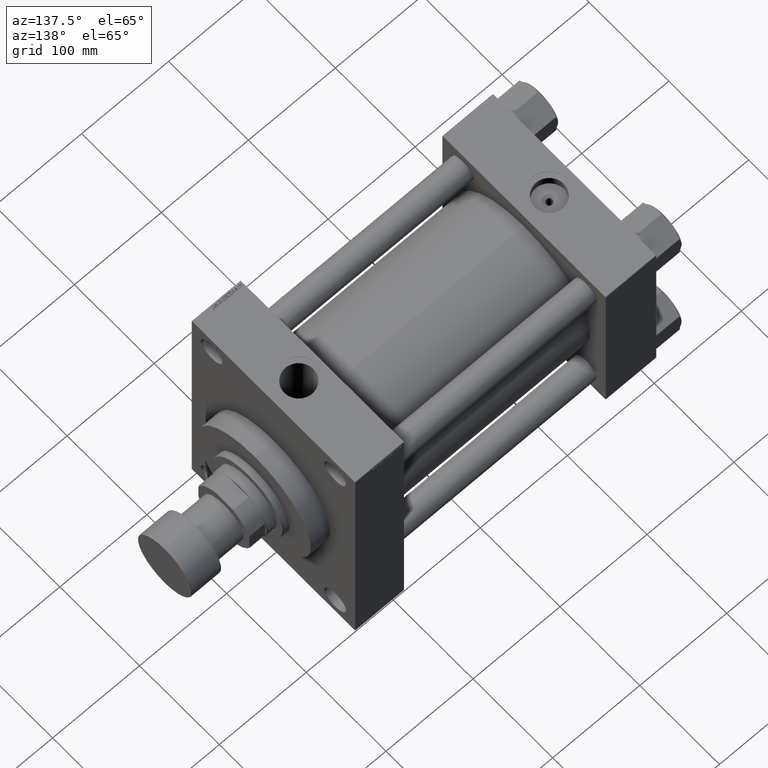
[diagram: clean part render]
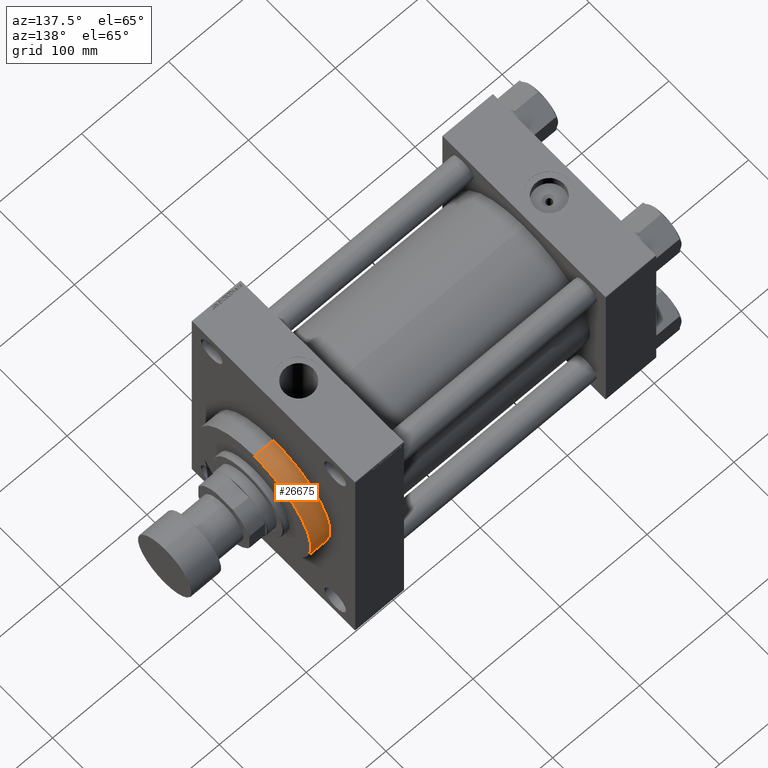
[diagram: same view with one face highlighted and labeled with its STEP entity id]
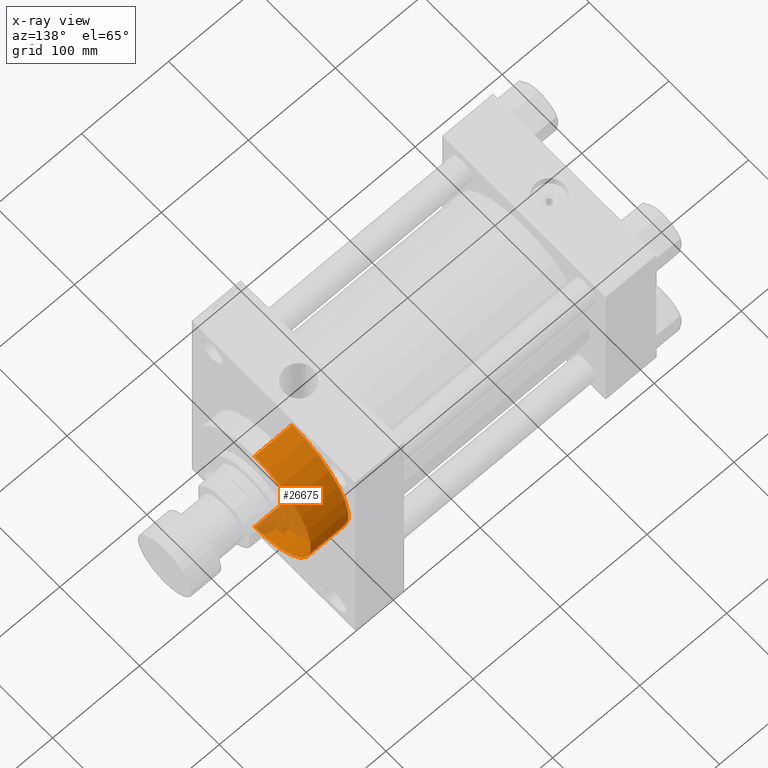
[diagram: x-ray of the same camera — body ghosted, the highlighted face saturated]
A machine part, auxiliary view. The second image highlights one B-rep face of the part: STEP entity #26675.
The next image is the same camera in x-ray: the body ghosted, the highlighted face saturated — about 17% of this face is hidden behind the body in this view.
In plain terms, the highlighted cylindrical surface (partial cylindrical patch) has radius 71 mm, axis along (-1, -0, 0).
Its self-contained STEP definition (entity closure, byte-faithful):
#1327 = DIRECTION ( 'NONE',  ( -0.000000000000000000, -0.000000000000000000, -1.000000000000000000 ) ) ;
#1531 = ORIENTED_EDGE ( 'NONE', *, *, #44902, .T. ) ;
#5234 = FACE_OUTER_BOUND ( 'NONE', #18524, .T. ) ;
#8718 = LINE ( 'NONE', #20386, #31416 ) ;
#9134 = CIRCLE ( 'NONE', #42563, 71.00000000000001421 ) ;
#9764 = DIRECTION ( 'NONE',  ( 0.000000000000000000, 0.000000000000000000, 1.000000000000000000 ) ) ;
#9818 = CARTESIAN_POINT ( 'NONE',  ( 0.000000000000000000, 0.000000000000000000, 0.000000000000000000 ) ) ;
#10010 = CARTESIAN_POINT ( 'NONE',  ( 71.00000000000001421, 8.694992273946208141E-15, 43.25999999999999801 ) ) ;
#12876 = CARTESIAN_POINT ( 'NONE',  ( -71.00000000000001421, 0.000000000000000000, 43.25999999999999801 ) ) ;
#13586 = ORIENTED_EDGE ( 'NONE', *, *, #17338, .F. ) ;
#14968 = CARTESIAN_POINT ( 'NONE',  ( -71.00000000000001421, 0.000000000000000000, 43.25999999999999801 ) ) ;
#15762 = AXIS2_PLACEMENT_3D ( 'NONE', #9818, #32673, #24427 ) ;
#17338 = EDGE_CURVE ( 'NONE', #36527, #36771, #9134, .T. ) ;
#18514 = ORIENTED_EDGE ( 'NONE', *, *, #39826, .T. ) ;
#18524 = EDGE_LOOP ( 'NONE', ( #13586, #1531, #18514, #41003 ) ) ;
#20062 = DIRECTION ( 'NONE',  ( -1.000000000000000000, 0.000000000000000000, 0.000000000000000000 ) ) ;
#20386 = CARTESIAN_POINT ( 'NONE',  ( 71.00000000000001421, 8.694992273946208141E-15, 43.25999999999999801 ) ) ;
#23468 = CARTESIAN_POINT ( 'NONE',  ( 0.000000000000000000, 0.000000000000000000, 43.25999999999999801 ) ) ;
#24040 = DIRECTION ( 'NONE',  ( -0.000000000000000000, -0.000000000000000000, -1.000000000000000000 ) ) ;
#24427 = DIRECTION ( 'NONE',  ( 1.000000000000000000, 0.000000000000000000, 0.000000000000000000 ) ) ;
#24614 = DIRECTION ( 'NONE',  ( 1.000000000000000000, 0.000000000000000000, 0.000000000000000000 ) ) ;
#25077 = CIRCLE ( 'NONE', #15762, 71.00000000000001421 ) ;
#26675 = ADVANCED_FACE ( 'NONE', ( #5234 ), #34671, .T. ) ;
#27947 = EDGE_CURVE ( 'NONE', #36771, #34812, #37876, .T. ) ;
#28816 = CARTESIAN_POINT ( 'NONE',  ( -71.00000000000001421, 0.000000000000000000, 0.000000000000000000 ) ) ;
#31416 = VECTOR ( 'NONE', #24040, 1000.000000000000000 ) ;
#32673 = DIRECTION ( 'NONE',  ( 0.000000000000000000, 0.000000000000000000, 1.000000000000000000 ) ) ;
#34671 = CYLINDRICAL_SURFACE ( 'NONE', #42036, 71.00000000000001421 ) ;
#34812 = VERTEX_POINT ( 'NONE', #28816 ) ;
#36455 = CARTESIAN_POINT ( 'NONE',  ( 71.00000000000001421, 8.694992273946208141E-15, 0.000000000000000000 ) ) ;
#36527 = VERTEX_POINT ( 'NONE', #10010 ) ;
#36771 = VERTEX_POINT ( 'NONE', #12876 ) ;
#37876 = LINE ( 'NONE', #14968, #46175 ) ;
#39826 = EDGE_CURVE ( 'NONE', #41297, #34812, #25077, .T. ) ;
#41003 = ORIENTED_EDGE ( 'NONE', *, *, #27947, .F. ) ;
#41297 = VERTEX_POINT ( 'NONE', #36455 ) ;
#42036 = AXIS2_PLACEMENT_3D ( 'NONE', #23468, #1327, #20062 ) ;
#42563 = AXIS2_PLACEMENT_3D ( 'NONE', #42644, #9764, #24614 ) ;
#42644 = CARTESIAN_POINT ( 'NONE',  ( 0.000000000000000000, 0.000000000000000000, 43.25999999999999801 ) ) ;
#44902 = EDGE_CURVE ( 'NONE', #36527, #41297, #8718, .T. ) ;
#45176 = DIRECTION ( 'NONE',  ( -0.000000000000000000, -0.000000000000000000, -1.000000000000000000 ) ) ;
#46175 = VECTOR ( 'NONE', #45176, 1000.000000000000000 ) ;